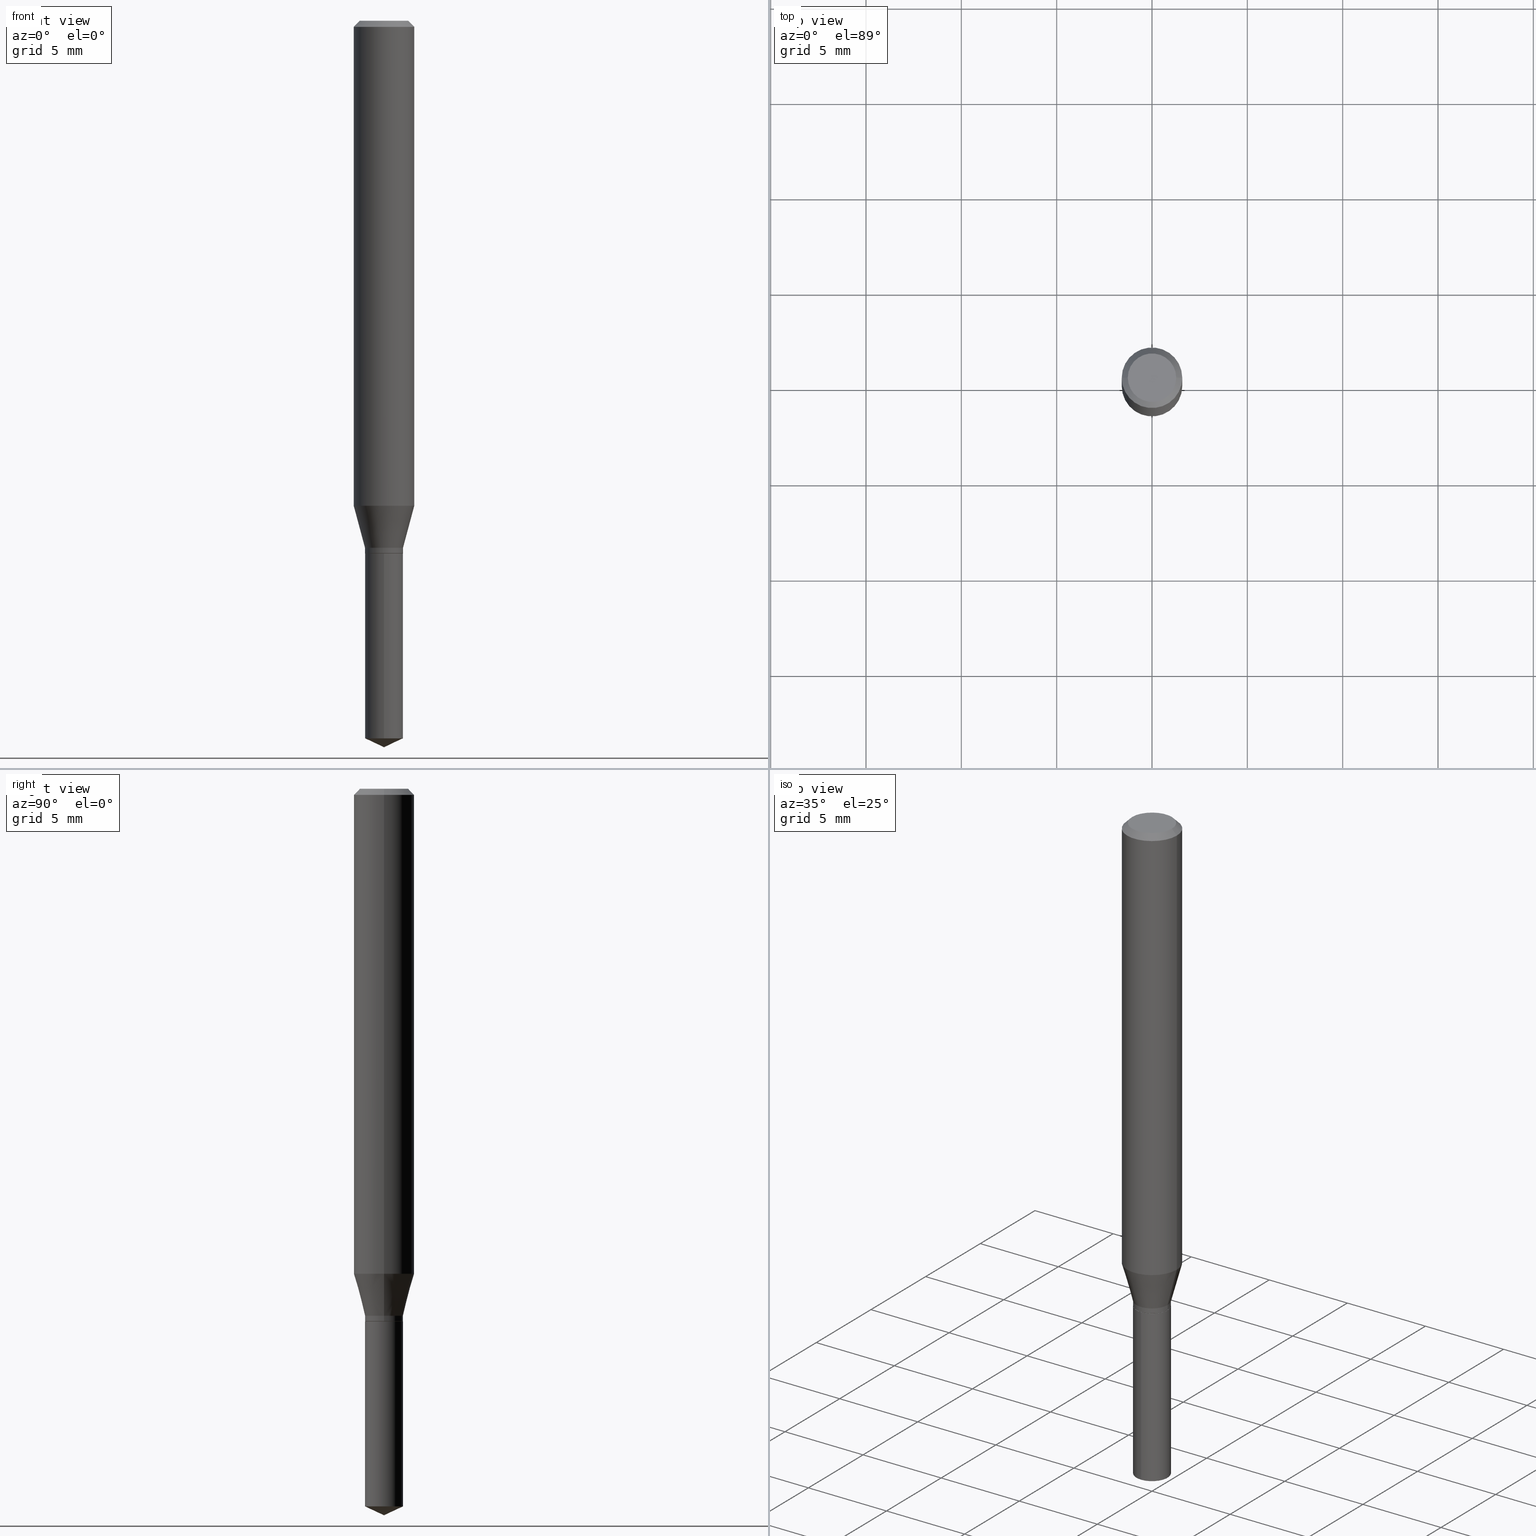
[diagram: canonical four-view strip — front | top / right | iso, engineering-drawing reading convention]
A machine part, canonical four-view strip (front | top / right | iso — engineering-drawing reading convention). The complete STEP part file that produces these views, byte-faithful:
ISO-10303-21;
HEADER;
FILE_DESCRIPTION (( 'STEP AP203' ),
    '1' );
FILE_NAME ('07188.STEP',
    '2024-04-23T19:56:03',
    ( '' ),
    ( '' ),
    'SwSTEP 2.0',
    'SolidWorks 2023',
    '' );
FILE_SCHEMA (( 'CONFIG_CONTROL_DESIGN' ));
ENDSEC;

DATA;
#1 = PERSON_AND_ORGANIZATION ( #194, #307 ) ;
#2 = CARTESIAN_POINT ( 'NONE',  ( 2.690015686803650369E-29, -3.840629472727460101E-15, -1.100000000000000089 ) ) ;
#3 = APPROVAL_DATE_TIME ( #106, #258 ) ;
#4 = DIRECTION ( 'NONE',  ( -2.445399690415121530E-29, 3.491580316559632610E-15, 1.000000000000000000 ) ) ;
#5 = CALENDAR_DATE ( 2024, 23, 4 ) ;
#6 = CARTESIAN_POINT ( 'NONE',  ( 2.448965383273235722E-29, -3.496473524236002365E-15, -1.001429818724023590 ) ) ;
#7 = DIRECTION ( 'NONE',  ( -6.982962677686264344E-15, -1.000000000000000000, 3.480061138425812861E-15 ) ) ;
#8 = APPROVAL ( #409, 'UNSPECIFIED' ) ;
#9 = DIRECTION ( 'NONE',  ( -2.445468806185136597E-29, 3.491481338843145583E-15, 1.000000000000000000 ) ) ;
#10 = DIRECTION ( 'NONE',  ( -0.7071067811865453523, 2.468850131082234184E-15, -0.7071067811865496822 ) ) ;
#11 = CIRCLE ( 'NONE', #38, 0.04999999999999999584 ) ;
#12 = LINE ( 'NONE', #123, #82 ) ;
#13 = AXIS2_PLACEMENT_3D ( 'NONE', #6, #152, #313 ) ;
#14 = DIRECTION ( 'NONE',  ( 1.000000000000000000, -6.982962677686264344E-15, 0.000000000000000000 ) ) ;
#15 = CARTESIAN_POINT ( 'NONE',  ( -0.03925000000000000017, -3.540268838707735840E-15, -1.099499999999999922 ) ) ;
#16 = ORIENTED_EDGE ( 'NONE', *, *, #300, .T. ) ;
#17 = DATE_AND_TIME ( #265, #472 ) ;
#18 = VECTOR ( 'NONE', #129, 39.37007874015748143 ) ;
#19 = FACE_OUTER_BOUND ( 'NONE', #116, .T. ) ;
#20 = ORIENTED_EDGE ( 'NONE', *, *, #89, .T. ) ;
#21 = AXIS2_PLACEMENT_3D ( 'NONE', #113, #188, #7 ) ;
#22 = DATE_TIME_ROLE ( 'classification_date' ) ;
#23 = DIRECTION ( 'NONE',  ( -2.445468806185136597E-29, 3.491481338843145583E-15, 1.000000000000000000 ) ) ;
#24 = ORIENTED_EDGE ( 'NONE', *, *, #84, .T. ) ;
#25 = CYLINDRICAL_SURFACE ( 'NONE', #269, 0.03925000000000000017 ) ;
#26 = ORIENTED_EDGE ( 'NONE', *, *, #463, .T. ) ;
#27 = CARTESIAN_POINT ( 'NONE',  ( 0.03925000000000000017, -4.073511278028297355E-15, -1.088200000000000056 ) ) ;
#28 = AXIS2_PLACEMENT_3D ( 'NONE', #177, #210, #276 ) ;
#29 = EDGE_LOOP ( 'NONE', ( #488, #20, #437, #320 ) ) ;
#30 = DESIGN_CONTEXT ( 'detailed design', #489, 'design' ) ;
#31 = EDGE_CURVE ( 'NONE', #485, #404, #257, .T. ) ;
#32 = CARTESIAN_POINT ( 'NONE',  ( 3.893286209682126177E-47, -5.558580879666067980E-33, -1.592040838891559689E-18 ) ) ;
#33 = ORIENTED_EDGE ( 'NONE', *, *, #117, .T. ) ;
#34 = CARTESIAN_POINT ( 'NONE',  ( 2.690015686803650369E-29, -3.840629472727460101E-15, -1.100000000000000089 ) ) ;
#35 = EDGE_CURVE ( 'NONE', #406, #290, #165, .T. ) ;
#36 = DIRECTION ( 'NONE',  ( 6.439704144417042975E-15, 0.9063077870366539335, 0.4226182617406908926 ) ) ;
#37 = CIRCLE ( 'NONE', #382, 0.03925000000000000017 ) ;
#38 = AXIS2_PLACEMENT_3D ( 'NONE', #201, #240, #309 ) ;
#39 = FACE_OUTER_BOUND ( 'NONE', #29, .T. ) ;
#40 = CALENDAR_DATE ( 2024, 23, 4 ) ;
#41 = DIRECTION ( 'NONE',  ( 1.000000000000000000, -6.982962677686266711E-15, 0.000000000000000000 ) ) ;
#42 = CARTESIAN_POINT ( 'NONE',  ( 3.056836007731440539E-31, -4.364351673553960451E-17, -0.01250000000000008049 ) ) ;
#43 = CONICAL_SURFACE ( 'NONE', #164, 0.06250000000000000000, 0.7853981633974452814 ) ;
#44 = AXIS2_PLACEMENT_3D ( 'NONE', #78, #419, #336 ) ;
#45 = CYLINDRICAL_SURFACE ( 'NONE', #119, 0.06250000000000005551 ) ;
#46 = DIRECTION ( 'NONE',  ( -2.445468806185136597E-29, 3.491481338843145583E-15, 1.000000000000000000 ) ) ;
#47 = ADVANCED_FACE ( 'NONE', ( #293 ), #315, .T. ) ;
#48 = CARTESIAN_POINT ( 'NONE',  ( 0.03925000000000000017, -2.740812850991859704E-16, 1.913899384499904532E-30 ) ) ;
#49 = CC_DESIGN_APPROVAL ( #8, ( #451 ) ) ;
#50 = DIRECTION ( 'NONE',  ( -2.445468806185136597E-29, 3.491481338843145583E-15, 1.000000000000000000 ) ) ;
#51 = FACE_OUTER_BOUND ( 'NONE', #136, .T. ) ;
#52 = ORIENTED_EDGE ( 'NONE', *, *, #286, .F. ) ;
#53 = CYLINDRICAL_SURFACE ( 'NONE', #233, 0.03925000000000000017 ) ;
#54 = ORIENTED_EDGE ( 'NONE', *, *, #230, .F. ) ;
#55 = CIRCLE ( 'NONE', #118, 0.03925000000000000017 ) ;
#56 = AXIS2_PLACEMENT_3D ( 'NONE', #443, #100, #252 ) ;
#57 = FACE_OUTER_BOUND ( 'NONE', #359, .T. ) ;
#58 = VERTEX_POINT ( 'NONE', #221 ) ;
#59 = CONICAL_SURFACE ( 'NONE', #245, 84.42940631927528727, 1.134464013796320225 ) ;
#60 = PLANE ( 'NONE',  #314 ) ;
#61 = ORIENTED_EDGE ( 'NONE', *, *, #89, .F. ) ;
#62 = FACE_OUTER_BOUND ( 'NONE', #362, .T. ) ;
#63 = VERTEX_POINT ( 'NONE', #368 ) ;
#64 = CARTESIAN_POINT ( 'NONE',  ( -0.03925000000000000017, -3.540268838707735840E-15, -1.088200000000000056 ) ) ;
#65 = CONICAL_SURFACE ( 'NONE', #56, 0.03925000000000000017, 0.2617993877991499629 ) ;
#66 = ORIENTED_EDGE ( 'NONE', *, *, #300, .F. ) ;
#67 = VECTOR ( 'NONE', #373, 39.37007874015748143 ) ;
#68 = COORDINATED_UNIVERSAL_TIME_OFFSET ( 5, 0, .BEHIND. ) ;
#69 = ORIENTED_EDGE ( 'NONE', *, *, #192, .F. ) ;
#70 = EDGE_CURVE ( 'NONE', #182, #464, #378, .T. ) ;
#71 =( NAMED_UNIT ( * ) PLANE_ANGLE_UNIT ( ) SI_UNIT ( $, .RADIAN. ) );
#72 = DIRECTION ( 'NONE',  ( -6.982962677686266711E-15, -1.000000000000000000, 3.520397390770414427E-15 ) ) ;
#73 = ORIENTED_EDGE ( 'NONE', *, *, #417, .T. ) ;
#74 = AXIS2_PLACEMENT_3D ( 'NONE', #149, #455, #76 ) ;
#75 = AXIS2_PLACEMENT_3D ( 'NONE', #306, #46, #14 ) ;
#76 = DIRECTION ( 'NONE',  ( 1.000000000000000000, 0.000000000000000000, 0.000000000000000000 ) ) ;
#77 = VERTEX_POINT ( 'NONE', #260 ) ;
#78 = CARTESIAN_POINT ( 'NONE',  ( 2.690015686803650369E-29, -3.840629472727460101E-15, -1.100000000000000089 ) ) ;
#79 = ADVANCED_FACE ( 'NONE', ( #371 ), #468, .T. ) ;
#80 = CARTESIAN_POINT ( 'NONE',  ( 0.03925000000000000017, -4.112965017157224125E-15, -1.099499999999999922 ) ) ;
#81 = CONICAL_SURFACE ( 'NONE', #291, 0.03925000000000000017, 0.2617993877991499629 ) ;
#82 = VECTOR ( 'NONE', #120, 39.37007874015748854 ) ;
#83 = DIRECTION ( 'NONE',  ( -2.445468806185136597E-29, 3.491481338843145583E-15, 1.000000000000000000 ) ) ;
#84 = EDGE_CURVE ( 'NONE', #58, #206, #448, .T. ) ;
#85 = CARTESIAN_POINT ( 'NONE',  ( 2.661159154890666307E-29, -3.799429992929111828E-15, -1.088200000000000056 ) ) ;
#86 = CARTESIAN_POINT ( 'NONE',  ( 2.688792952400557567E-29, -3.838883732058038598E-15, -1.099499999999999922 ) ) ;
#87 = CARTESIAN_POINT ( 'NONE',  ( -0.03925000000000000017, -3.520541969143272060E-15, -1.088200000000000056 ) ) ;
#88 = DIRECTION ( 'NONE',  ( 1.000000000000000000, -6.982962677686265922E-15, 4.875957971899673662E-29 ) ) ;
#89 = EDGE_CURVE ( 'NONE', #490, #317, #105, .T. ) ;
#90 = DIRECTION ( 'NONE',  ( 1.000000000000000000, -6.982962677686266711E-15, 4.876176775795935232E-29 ) ) ;
#91 = EDGE_LOOP ( 'NONE', ( #52, #61 ) ) ;
#92 = VECTOR ( 'NONE', #428, 39.37007874015748143 ) ;
#93 = CC_DESIGN_SECURITY_CLASSIFICATION ( #324, ( #144 ) ) ;
#94 = DIRECTION ( 'NONE',  ( -6.982962677686264344E-15, -1.000000000000000000, 3.480061138425812861E-15 ) ) ;
#95 = ORIENTED_EDGE ( 'NONE', *, *, #286, .T. ) ;
#96 = ADVANCED_FACE ( 'NONE', ( #39 ), #439, .T. ) ;
#97 = CARTESIAN_POINT ( 'NONE',  ( 0.03925000000000000017, -4.073511278028297355E-15, -1.088200000000000056 ) ) ;
#98 = ORIENTED_EDGE ( 'NONE', *, *, #486, .F. ) ;
#99 = ADVANCED_FACE ( 'NONE', ( #148 ), #266, .F. ) ;
#100 = DIRECTION ( 'NONE',  ( -2.445468806185136597E-29, 3.491481338843145583E-15, 1.000000000000000000 ) ) ;
#101 = EDGE_LOOP ( 'NONE', ( #375, #224, #251, #434 ) ) ;
#102 = COORDINATED_UNIVERSAL_TIME_OFFSET ( 5, 0, .BEHIND. ) ;
#103 = ORIENTED_EDGE ( 'NONE', *, *, #463, .F. ) ;
#104 = EDGE_CURVE ( 'NONE', #206, #58, #418, .T. ) ;
#105 = CIRCLE ( 'NONE', #44, 0.03874999999999999972 ) ;
#106 = DATE_AND_TIME ( #5, #423 ) ;
#107 = CARTESIAN_POINT ( 'NONE',  ( -0.03925000000000000017, 2.788880237858393241E-16, -1.930682022925050524E-30 ) ) ;
#108 = CARTESIAN_POINT ( 'NONE',  ( 2.690015686803650369E-29, -3.840629472727460101E-15, -1.100000000000000089 ) ) ;
#109 = DIRECTION ( 'NONE',  ( -6.982962677686264344E-15, -1.000000000000000000, 6.960122276851625723E-15 ) ) ;
#110 = LOCAL_TIME ( 15, 56, 3.000000000000000000, #157 ) ;
#111 = COORDINATED_UNIVERSAL_TIME_OFFSET ( 5, 0, .BEHIND. ) ;
#112 = ADVANCED_FACE ( 'NONE', ( #414 ), #296, .T. ) ;
#113 = CARTESIAN_POINT ( 'NONE',  ( 2.690015686803650369E-29, -3.840629472727460101E-15, -1.100000000000000089 ) ) ;
#114 = DIRECTION ( 'NONE',  ( 1.000000000000000000, -6.982962677686267499E-15, 4.876176775795936353E-29 ) ) ;
#115 = LINE ( 'NONE', #469, #332 ) ;
#116 = EDGE_LOOP ( 'NONE', ( #176, #430 ) ) ;
#117 = EDGE_CURVE ( 'NONE', #404, #426, #247, .T. ) ;
#118 = AXIS2_PLACEMENT_3D ( 'NONE', #85, #268, #352 ) ;
#119 = AXIS2_PLACEMENT_3D ( 'NONE', #122, #9, #114 ) ;
#120 = DIRECTION ( 'NONE',  ( -0.7071067811865232589, 7.493145998870265808E-15, 0.7071067811865715536 ) ) ;
#121 = PRODUCT_RELATED_PRODUCT_CATEGORY ( 'detail', '', ( #350 ) ) ;
#122 = CARTESIAN_POINT ( 'NONE',  ( 0.000000000000000000, 0.000000000000000000, 0.000000000000000000 ) ) ;
#123 = CARTESIAN_POINT ( 'NONE',  ( -0.03874999999999999972, -3.565294162620420838E-15, -1.100000000000000089 ) ) ;
#124 = ORIENTED_EDGE ( 'NONE', *, *, #127, .T. ) ;
#125 = VECTOR ( 'NONE', #261, 39.37007874015748143 ) ;
#126 = CONICAL_SURFACE ( 'NONE', #351, 0.06250000000000000000, 0.7853981633974452814 ) ;
#127 = EDGE_CURVE ( 'NONE', #290, #406, #275, .T. ) ;
#128 = DIRECTION ( 'NONE',  ( -2.445468806185136597E-29, 3.491481338843145583E-15, 1.000000000000000000 ) ) ;
#129 = DIRECTION ( 'NONE',  ( -6.328713451373388311E-15, -0.9063077870366510469, 0.4226182617406972208 ) ) ;
#130 = EDGE_CURVE ( 'NONE', #392, #77, #215, .T. ) ;
#131 = ORIENTED_EDGE ( 'NONE', *, *, #435, .T. ) ;
#132 = DIRECTION ( 'NONE',  ( 1.000000000000000000, -6.982962677686264344E-15, 0.000000000000000000 ) ) ;
#133 = ORIENTED_EDGE ( 'NONE', *, *, #117, .F. ) ;
#134 = ADVANCED_FACE ( 'NONE', ( #200 ), #45, .T. ) ;
#135 = DIRECTION ( 'NONE',  ( -1.000000000000000000, 6.982962677686266711E-15, 0.000000000000000000 ) ) ;
#136 = EDGE_LOOP ( 'NONE', ( #402, #444, #178, #124 ) ) ;
#137 = VECTOR ( 'NONE', #36, 39.37007874015748854 ) ;
#138 = APPROVAL ( #195, 'UNSPECIFIED' ) ;
#139 = DIRECTION ( 'NONE',  ( 0.2588190451025212391, 1.565188264969622362E-15, 0.9659258262890679791 ) ) ;
#140 = ORIENTED_EDGE ( 'NONE', *, *, #277, .F. ) ;
#141 = PERSON_AND_ORGANIZATION ( #194, #307 ) ;
#142 = ORIENTED_EDGE ( 'NONE', *, *, #158, .T. ) ;
#143 = APPROVAL_ROLE ( '' ) ;
#144 = PRODUCT_DEFINITION_FORMATION_WITH_SPECIFIED_SOURCE ( 'ANY', '', #350, .NOT_KNOWN. ) ;
#145 = ORIENTED_EDGE ( 'NONE', *, *, #104, .T. ) ;
#146 = VECTOR ( 'NONE', #204, 39.37007874015748143 ) ;
#147 = CARTESIAN_POINT ( 'NONE',  ( 3.668099535622682715E-29, -5.237370474839449507E-15, -1.500000000000000222 ) ) ;
#148 = FACE_OUTER_BOUND ( 'NONE', #91, .T. ) ;
#149 = CARTESIAN_POINT ( 'NONE',  ( 0.000000000000000000, 0.000000000000000000, 0.000000000000000000 ) ) ;
#150 = CARTESIAN_POINT ( 'NONE',  ( 3.623418450306251076E-29, -5.173356686704819845E-15, -1.481697424417416808 ) ) ;
#151 = PERSON_AND_ORGANIZATION_ROLE ( 'creator' ) ;
#152 = DIRECTION ( 'NONE',  ( -2.445468806185136597E-29, 3.491481338843145583E-15, 1.000000000000000000 ) ) ;
#153 = APPROVAL_PERSON_ORGANIZATION ( #1, #258, #452 ) ;
#154 = AXIS2_PLACEMENT_3D ( 'NONE', #227, #299, #41 ) ;
#155 = ADVANCED_FACE ( 'NONE', ( #51 ), #126, .T. ) ;
#156 = DIRECTION ( 'NONE',  ( -2.445468806185136597E-29, 3.491481338843145583E-15, 1.000000000000000000 ) ) ;
#157 = COORDINATED_UNIVERSAL_TIME_OFFSET ( 5, 0, .BEHIND. ) ;
#158 = EDGE_CURVE ( 'NONE', #397, #406, #346, .T. ) ;
#159 = DIRECTION ( 'NONE',  ( 2.445468806185136597E-29, -3.491481338843145583E-15, -1.000000000000000000 ) ) ;
#160 = EDGE_LOOP ( 'NONE', ( #24, #145 ) ) ;
#161 = MANIFOLD_SOLID_BREP ( 'Body-Move/Copy2[1]', #372 ) ;
#162 = DIRECTION ( 'NONE',  ( 1.000000000000000000, -6.982962677686264344E-15, 0.000000000000000000 ) ) ;
#163 = AXIS2_PLACEMENT_3D ( 'NONE', #294, #184, #193 ) ;
#164 = AXIS2_PLACEMENT_3D ( 'NONE', #473, #243, #135 ) ;
#165 = CIRCLE ( 'NONE', #431, 0.06250000000000000000 ) ;
#166 = DIRECTION ( 'NONE',  ( -6.982962677686264344E-15, -1.000000000000000000, 6.960122276851625723E-15 ) ) ;
#167 = PLANE ( 'NONE',  #380 ) ;
#168 = LINE ( 'NONE', #462, #197 ) ;
#169 = VERTEX_POINT ( 'NONE', #80 ) ;
#170 = PERSON_AND_ORGANIZATION ( #194, #307 ) ;
#171 = VECTOR ( 'NONE', #232, 39.37007874015748854 ) ;
#172 = DIRECTION ( 'NONE',  ( -2.445468806185136597E-29, 3.491481338843145583E-15, 1.000000000000000000 ) ) ;
#173 = APPLICATION_CONTEXT ( 'configuration controlled 3d designs of mechanical parts and assemblies' ) ;
#174 = EDGE_LOOP ( 'NONE', ( #244, #142, #180, #69 ) ) ;
#175 = FACE_OUTER_BOUND ( 'NONE', #285, .T. ) ;
#176 = ORIENTED_EDGE ( 'NONE', *, *, #335, .T. ) ;
#177 = CARTESIAN_POINT ( 'NONE',  ( 0.000000000000000000, 0.000000000000000000, 0.000000000000000000 ) ) ;
#178 = ORIENTED_EDGE ( 'NONE', *, *, #192, .T. ) ;
#179 = CARTESIAN_POINT ( 'NONE',  ( 2.661159154890666307E-29, -3.799429992929111828E-15, -1.088200000000000056 ) ) ;
#180 = ORIENTED_EDGE ( 'NONE', *, *, #35, .T. ) ;
#181 = FACE_OUTER_BOUND ( 'NONE', #174, .T. ) ;
#182 = VERTEX_POINT ( 'NONE', #15 ) ;
#183 = PERSON_AND_ORGANIZATION ( #194, #307 ) ;
#184 = DIRECTION ( 'NONE',  ( -2.438088387897960049E-29, 3.491481338843145188E-15, 1.000000000000000000 ) ) ;
#185 = APPROVAL_DATE_TIME ( #328, #8 ) ;
#186 = CIRCLE ( 'NONE', #305, 0.03874999999999999972 ) ;
#187 = APPROVAL_PERSON_ORGANIZATION ( #170, #138, #474 ) ;
#188 = DIRECTION ( 'NONE',  ( -2.445399690415121530E-29, 3.491580316559632610E-15, 1.000000000000000000 ) ) ;
#189 = AXIS2_PLACEMENT_3D ( 'NONE', #150, #340, #109 ) ;
#190 = APPLICATION_PROTOCOL_DEFINITION ( 'international standard', 'config_control_design', 1994, #489 ) ;
#191 = ORIENTED_EDGE ( 'NONE', *, *, #209, .F. ) ;
#192 = EDGE_CURVE ( 'NONE', #63, #290, #424, .T. ) ;
#193 = DIRECTION ( 'NONE',  ( 1.000000000000000000, -6.982962677686265922E-15, 4.876176775795935793E-29 ) ) ;
#194 = PERSON ( 'UNSPECIFIED', 'UNSPECIFIED', 'UNSPECIFIED', ('UNSPECIFIED'), ('UNSPECIFIED'), ('UNSPECIFIED') ) ;
#195 = APPROVAL_STATUS ( 'not_yet_approved' ) ;
#196 = DIRECTION ( 'NONE',  ( 1.000000000000000000, -6.982962677686263555E-15, 0.000000000000000000 ) ) ;
#197 = VECTOR ( 'NONE', #345, 39.37007874015748143 ) ;
#198 = EDGE_CURVE ( 'NONE', #169, #182, #37, .T. ) ;
#199 = CARTESIAN_POINT ( 'NONE',  ( 3.056836007731440539E-31, -4.364351673553960451E-17, -0.01250000000000008049 ) ) ;
#200 = FACE_OUTER_BOUND ( 'NONE', #101, .T. ) ;
#201 = CARTESIAN_POINT ( 'NONE',  ( 3.893286209682126177E-47, -5.558580879666067980E-33, -1.592040838891559689E-18 ) ) ;
#202 = AXIS2_PLACEMENT_3D ( 'NONE', #338, #4, #456 ) ;
#203 = FACE_OUTER_BOUND ( 'NONE', #160, .T. ) ;
#204 = DIRECTION ( 'NONE',  ( -2.445468806185136877E-29, 3.491481338843145188E-15, 1.000000000000000000 ) ) ;
#205 = DIRECTION ( 'NONE',  ( -1.000000000000000000, 6.982962677686265922E-15, -4.876176775795935793E-29 ) ) ;
#206 = VERTEX_POINT ( 'NONE', #302 ) ;
#207 = CARTESIAN_POINT ( 'NONE',  ( 0.06250000000000000000, -4.800786840909312308E-16, -0.01250000000000008049 ) ) ;
#208 = ORIENTED_EDGE ( 'NONE', *, *, #70, .T. ) ;
#209 = EDGE_CURVE ( 'NONE', #464, #392, #429, .T. ) ;
#210 = DIRECTION ( 'NONE',  ( -2.445468806185136597E-29, 3.491481338843145583E-15, 1.000000000000000000 ) ) ;
#211 = ORIENTED_EDGE ( 'NONE', *, *, #253, .F. ) ;
#212 = CYLINDRICAL_SURFACE ( 'NONE', #28, 0.06250000000000005551 ) ;
#213 = EDGE_LOOP ( 'NONE', ( #95, #395, #288, #54 ) ) ;
#214 = LINE ( 'NONE', #480, #387 ) ;
#215 = CIRCLE ( 'NONE', #13, 0.06250000000000012490 ) ;
#216 = EDGE_LOOP ( 'NONE', ( #312, #73, #16, #103 ) ) ;
#217 = EDGE_CURVE ( 'NONE', #77, #406, #470, .T. ) ;
#218 = CARTESIAN_POINT ( 'NONE',  ( -2.740812850991590012E-16, -0.03925000000000383737, -1.099999999999999867 ) ) ;
#219 = ORIENTED_EDGE ( 'NONE', *, *, #222, .T. ) ;
#220 = EDGE_CURVE ( 'NONE', #364, #464, #55, .T. ) ;
#221 = CARTESIAN_POINT ( 'NONE',  ( -2.740812850991590012E-16, -0.03925000000000383737, -1.099999999999999867 ) ) ;
#222 = EDGE_CURVE ( 'NONE', #392, #290, #168, .T. ) ;
#223 = AXIS2_PLACEMENT_3D ( 'NONE', #281, #436, #94 ) ;
#224 = ORIENTED_EDGE ( 'NONE', *, *, #130, .T. ) ;
#225 = AXIS2_PLACEMENT_3D ( 'NONE', #2, #229, #196 ) ;
#226 = COORDINATED_UNIVERSAL_TIME_OFFSET ( 5, 0, .BEHIND. ) ;
#227 = CARTESIAN_POINT ( 'NONE',  ( 3.056836007731440539E-31, -4.364351673553960451E-17, -0.01250000000000008049 ) ) ;
#228 = LINE ( 'NONE', #218, #125 ) ;
#229 = DIRECTION ( 'NONE',  ( -2.445468806185136597E-29, 3.491481338843145583E-15, 1.000000000000000000 ) ) ;
#230 = EDGE_CURVE ( 'NONE', #317, #169, #115, .T. ) ;
#231 = APPROVAL_DATE_TIME ( #354, #138 ) ;
#232 = DIRECTION ( 'NONE',  ( -0.2588190451025212391, 5.211531920934549464E-15, 0.9659258262890679791 ) ) ;
#233 = AXIS2_PLACEMENT_3D ( 'NONE', #355, #172, #90 ) ;
#234 = VECTOR ( 'NONE', #383, 39.37007874015748143 ) ;
#235 = DIRECTION ( 'NONE',  ( -1.000000000000000000, 6.982962677686266711E-15, 0.000000000000000000 ) ) ;
#236 = ORIENTED_EDGE ( 'NONE', *, *, #341, .F. ) ;
#237 = CARTESIAN_POINT ( 'NONE',  ( -0.06250000000000000000, -1.325969310635706967E-15, -0.01250000000000008049 ) ) ;
#238 = CARTESIAN_POINT ( 'NONE',  ( -9.260740279983036507E-28, 1.322265303911854087E-13, 37.87007874015748143 ) ) ;
#239 = CC_DESIGN_APPROVAL ( #138, ( #324 ) ) ;
#240 = DIRECTION ( 'NONE',  ( -2.445468806185136597E-29, 3.491481338843145583E-15, 1.000000000000000000 ) ) ;
#241 = CARTESIAN_POINT ( 'NONE',  ( 2.688792952400557567E-29, -3.838883732058038598E-15, -1.099499999999999922 ) ) ;
#242 = EDGE_CURVE ( 'NONE', #490, #182, #12, .T. ) ;
#243 = DIRECTION ( 'NONE',  ( 2.445468806185136597E-29, -3.491481338843145583E-15, -1.000000000000000000 ) ) ;
#244 = ORIENTED_EDGE ( 'NONE', *, *, #308, .F. ) ;
#245 = AXIS2_PLACEMENT_3D ( 'NONE', #238, #467, #427 ) ;
#246 =( GEOMETRIC_REPRESENTATION_CONTEXT ( 3 ) GLOBAL_UNCERTAINTY_ASSIGNED_CONTEXT ( ( #398 ) ) GLOBAL_UNIT_ASSIGNED_CONTEXT ( ( #487, #71, #334 ) ) REPRESENTATION_CONTEXT ( 'NONE', 'WORKASPACE' ) );
#247 = CIRCLE ( 'NONE', #189, 0.03925000000000000017 ) ;
#248 = DIRECTION ( 'NONE',  ( -2.445399690415121810E-29, 3.491580316559632610E-15, 1.000000000000000000 ) ) ;
#249 = ORIENTED_EDGE ( 'NONE', *, *, #31, .T. ) ;
#250 = CYLINDRICAL_SURFACE ( 'NONE', #223, 0.03925000000000000017 ) ;
#251 = ORIENTED_EDGE ( 'NONE', *, *, #217, .T. ) ;
#252 = DIRECTION ( 'NONE',  ( 1.000000000000000000, -6.982962677686264344E-15, 0.000000000000000000 ) ) ;
#253 = EDGE_CURVE ( 'NONE', #77, #392, #483, .T. ) ;
#254 = ORIENTED_EDGE ( 'NONE', *, *, #217, .F. ) ;
#255 = PERSON_AND_ORGANIZATION ( #194, #307 ) ;
#256 = AXIS2_PLACEMENT_3D ( 'NONE', #420, #264, #72 ) ;
#257 = LINE ( 'NONE', #413, #137 ) ;
#258 = APPROVAL ( #339, 'UNSPECIFIED' ) ;
#259 = PERSON_AND_ORGANIZATION_ROLE ( 'design_supplier' ) ;
#260 = CARTESIAN_POINT ( 'NONE',  ( 0.06250000000000012490, -3.932908691591394824E-15, -1.001429818724023590 ) ) ;
#261 = DIRECTION ( 'NONE',  ( -2.445399690415121810E-29, 3.491580316559632610E-15, 1.000000000000000000 ) ) ;
#262 = DIRECTION ( 'NONE',  ( -2.445399690415121530E-29, 3.491580316559632610E-15, 1.000000000000000000 ) ) ;
#263 = CALENDAR_DATE ( 2024, 23, 4 ) ;
#264 = DIRECTION ( 'NONE',  ( -2.445399690415121530E-29, 3.491580316559632610E-15, 1.000000000000000000 ) ) ;
#265 = CALENDAR_DATE ( 2024, 23, 4 ) ;
#266 = PLANE ( 'NONE',  #163 ) ;
#267 = CARTESIAN_POINT ( 'NONE',  ( 0.06250000000000000000, -4.724246415962602840E-16, -0.01250000000000008049 ) ) ;
#268 = DIRECTION ( 'NONE',  ( -2.445468806185136597E-29, 3.491481338843145583E-15, 1.000000000000000000 ) ) ;
#269 = AXIS2_PLACEMENT_3D ( 'NONE', #396, #23, #321 ) ;
#270 = EDGE_LOOP ( 'NONE', ( #236, #33, #329, #461 ) ) ;
#271 = CARTESIAN_POINT ( 'NONE',  ( 3.623418450306251076E-29, -5.173356686704819845E-15, -1.481697424417416808 ) ) ;
#272 = DIRECTION ( 'NONE',  ( 1.000000000000000000, -6.982962677686263555E-15, 0.000000000000000000 ) ) ;
#273 = DIRECTION ( 'NONE',  ( 0.7071067811865232589, -2.468850131082003836E-15, 0.7071067811865715536 ) ) ;
#274 = ORIENTED_EDGE ( 'NONE', *, *, #330, .F. ) ;
#275 = CIRCLE ( 'NONE', #154, 0.06250000000000000000 ) ;
#276 = DIRECTION ( 'NONE',  ( 1.000000000000000000, -6.982962677686267499E-15, 4.876176775795936353E-29 ) ) ;
#277 = EDGE_CURVE ( 'NONE', #426, #404, #357, .T. ) ;
#278 = DIRECTION ( 'NONE',  ( 2.445399690415121250E-29, -3.491580316559632610E-15, -1.000000000000000000 ) ) ;
#279 = ORIENTED_EDGE ( 'NONE', *, *, #220, .F. ) ;
#280 = ADVANCED_FACE ( 'NONE', ( #391 ), #59, .T. ) ;
#281 = CARTESIAN_POINT ( 'NONE',  ( 2.690015686803650369E-29, -3.840629472727460101E-15, -1.100000000000000089 ) ) ;
#282 = ORIENTED_EDGE ( 'NONE', *, *, #31, .F. ) ;
#283 = AXIS2_PLACEMENT_3D ( 'NONE', #360, #287, #132 ) ;
#284 = FACE_OUTER_BOUND ( 'NONE', #453, .T. ) ;
#285 = EDGE_LOOP ( 'NONE', ( #191, #26, #442, #356 ) ) ;
#286 = EDGE_CURVE ( 'NONE', #317, #490, #186, .T. ) ;
#287 = DIRECTION ( 'NONE',  ( -2.445468806185136597E-29, 3.491481338843145583E-15, 1.000000000000000000 ) ) ;
#288 = ORIENTED_EDGE ( 'NONE', *, *, #198, .F. ) ;
#289 = PERSON_AND_ORGANIZATION_ROLE ( 'design_owner' ) ;
#290 = VERTEX_POINT ( 'NONE', #237 ) ;
#291 = AXIS2_PLACEMENT_3D ( 'NONE', #179, #325, #319 ) ;
#292 = LENGTH_MEASURE_WITH_UNIT ( LENGTH_MEASURE( 0.02539999999999999897 ), #416 );
#293 = FACE_OUTER_BOUND ( 'NONE', #326, .T. ) ;
#294 = CARTESIAN_POINT ( 'NONE',  ( 2.690015686803650369E-29, -3.840629472727460101E-15, -1.100000000000000089 ) ) ;
#295 = SECURITY_CLASSIFICATION_LEVEL ( 'unclassified' ) ;
#296 = CYLINDRICAL_SURFACE ( 'NONE', #202, 0.03925000000000000017 ) ;
#297 = PERSON_AND_ORGANIZATION ( #194, #307 ) ;
#298 = CIRCLE ( 'NONE', #283, 0.03925000000000000017 ) ;
#299 = DIRECTION ( 'NONE',  ( -2.445468806185136597E-29, 3.491481338843145583E-15, 1.000000000000000000 ) ) ;
#300 = EDGE_CURVE ( 'NONE', #169, #364, #386, .T. ) ;
#301 = ORIENTED_EDGE ( 'NONE', *, *, #84, .F. ) ;
#302 = CARTESIAN_POINT ( 'NONE',  ( 2.788880237858755131E-16, 0.03924999999999615602, -1.100000000000000089 ) ) ;
#303 = ADVANCED_BREP_SHAPE_REPRESENTATION ( '07188', ( #161, #318, #74 ), #246 ) ;
#304 = ORIENTED_EDGE ( 'NONE', *, *, #220, .T. ) ;
#305 = AXIS2_PLACEMENT_3D ( 'NONE', #353, #50, #272 ) ;
#306 = CARTESIAN_POINT ( 'NONE',  ( 2.448965383273235722E-29, -3.496473524236002365E-15, -1.001429818724023590 ) ) ;
#307 = ORGANIZATION ( 'UNSPECIFIED', 'UNSPECIFIED', '' ) ;
#308 = EDGE_CURVE ( 'NONE', #397, #63, #11, .T. ) ;
#309 = DIRECTION ( 'NONE',  ( 1.000000000000000000, -6.982962677686265922E-15, 4.875957971899673662E-29 ) ) ;
#310 = ORIENTED_EDGE ( 'NONE', *, *, #35, .F. ) ;
#311 = CARTESIAN_POINT ( 'NONE',  ( 2.690015686803650369E-29, -3.840629472727460101E-15, -1.100000000000000089 ) ) ;
#312 = ORIENTED_EDGE ( 'NONE', *, *, #70, .F. ) ;
#313 = DIRECTION ( 'NONE',  ( 1.000000000000000000, -6.982962677686264344E-15, 0.000000000000000000 ) ) ;
#314 = AXIS2_PLACEMENT_3D ( 'NONE', #363, #365, #205 ) ;
#315 = CONICAL_SURFACE ( 'NONE', #256, 84.42940631927528727, 1.134464013796320225 ) ;
#316 = CARTESIAN_POINT ( 'NONE',  ( -2.740812850991497321E-16, -0.03925000000000516270, -1.481697424417416808 ) ) ;
#317 = VERTEX_POINT ( 'NONE', #349 ) ;
#318 = MANIFOLD_SOLID_BREP ( 'Body-Move/Copy2[2]', #465 ) ;
#319 = DIRECTION ( 'NONE',  ( 1.000000000000000000, -6.982962677686264344E-15, 0.000000000000000000 ) ) ;
#320 = ORIENTED_EDGE ( 'NONE', *, *, #417, .F. ) ;
#321 = DIRECTION ( 'NONE',  ( 1.000000000000000000, -6.982962677686266711E-15, 4.876176775795935232E-29 ) ) ;
#322 = ORIENTED_EDGE ( 'NONE', *, *, #209, .T. ) ;
#323 = ADVANCED_FACE ( 'NONE', ( #203 ), #167, .F. ) ;
#324 = SECURITY_CLASSIFICATION ( '', '', #295 ) ;
#325 = DIRECTION ( 'NONE',  ( -2.445468806185136597E-29, 3.491481338843145583E-15, 1.000000000000000000 ) ) ;
#326 = EDGE_LOOP ( 'NONE', ( #366, #249, #140 ) ) ;
#327 = CC_DESIGN_PERSON_AND_ORGANIZATION_ASSIGNMENT ( #141, #445, ( #451 ) ) ;
#328 = DATE_AND_TIME ( #263, #415 ) ;
#329 = ORIENTED_EDGE ( 'NONE', *, *, #486, .T. ) ;
#330 = EDGE_CURVE ( 'NONE', #364, #77, #403, .T. ) ;
#331 = EDGE_LOOP ( 'NONE', ( #476, #384, #301, #98 ) ) ;
#332 = VECTOR ( 'NONE', #273, 39.37007874015748854 ) ;
#333 = LOCAL_TIME ( 15, 56, 3.000000000000000000, #226 ) ;
#334 =( NAMED_UNIT ( * ) SI_UNIT ( $, .STERADIAN. ) SOLID_ANGLE_UNIT ( ) );
#335 = EDGE_CURVE ( 'NONE', #63, #397, #407, .T. ) ;
#336 = DIRECTION ( 'NONE',  ( 1.000000000000000000, -6.982962677686263555E-15, 0.000000000000000000 ) ) ;
#337 = DATE_AND_TIME ( #40, #333 ) ;
#338 = CARTESIAN_POINT ( 'NONE',  ( 2.690015686803650369E-29, -3.840629472727460101E-15, -1.100000000000000089 ) ) ;
#339 = APPROVAL_STATUS ( 'not_yet_approved' ) ;
#340 = DIRECTION ( 'NONE',  ( -2.445399690415121530E-29, 3.491580316559632610E-15, 1.000000000000000000 ) ) ;
#341 = EDGE_CURVE ( 'NONE', #404, #206, #214, .T. ) ;
#342 = SHAPE_DEFINITION_REPRESENTATION ( #389, #303 ) ;
#343 = DIRECTION ( 'NONE',  ( 1.000000000000000000, -6.982962677686263555E-15, 0.000000000000000000 ) ) ;
#344 = AXIS2_PLACEMENT_3D ( 'NONE', #34, #156, #343 ) ;
#345 = DIRECTION ( 'NONE',  ( -2.445468806185136877E-29, 3.491481338843145188E-15, 1.000000000000000000 ) ) ;
#346 = LINE ( 'NONE', #267, #234 ) ;
#347 = DIMENSIONAL_EXPONENTS ( 1.000000000000000000, 0.000000000000000000, 0.000000000000000000, 0.000000000000000000, 0.000000000000000000, 0.000000000000000000, 0.000000000000000000 ) ;
#348 = VECTOR ( 'NONE', #139, 39.37007874015748854 ) ;
#349 = CARTESIAN_POINT ( 'NONE',  ( 0.03874999999999999972, -4.111219276487802621E-15, -1.100000000000000089 ) ) ;
#350 = PRODUCT ( '07188', '07188', '', ( #374 ) ) ;
#351 = AXIS2_PLACEMENT_3D ( 'NONE', #199, #159, #235 ) ;
#352 = DIRECTION ( 'NONE',  ( 1.000000000000000000, -6.982962677686264344E-15, 0.000000000000000000 ) ) ;
#353 = CARTESIAN_POINT ( 'NONE',  ( 2.690015686803650369E-29, -3.840629472727460101E-15, -1.100000000000000089 ) ) ;
#354 = DATE_AND_TIME ( #390, #110 ) ;
#355 = CARTESIAN_POINT ( 'NONE',  ( 0.000000000000000000, 0.000000000000000000, 0.000000000000000000 ) ) ;
#356 = ORIENTED_EDGE ( 'NONE', *, *, #130, .F. ) ;
#357 = CIRCLE ( 'NONE', #425, 0.03925000000000000017 ) ;
#358 = DIRECTION ( 'NONE',  ( 1.000000000000000000, -6.982962677686264344E-15, 0.000000000000000000 ) ) ;
#359 = EDGE_LOOP ( 'NONE', ( #478, #208, #279, #66 ) ) ;
#360 = CARTESIAN_POINT ( 'NONE',  ( 2.661159154890666307E-29, -3.799429992929111828E-15, -1.088200000000000056 ) ) ;
#361 = ADVANCED_FACE ( 'NONE', ( #181 ), #43, .T. ) ;
#362 = EDGE_LOOP ( 'NONE', ( #304, #322, #211, #274 ) ) ;
#363 = CARTESIAN_POINT ( 'NONE',  ( 1.946643104841063088E-47, -2.779290439833033990E-33, -7.960204194457798443E-19 ) ) ;
#364 = VERTEX_POINT ( 'NONE', #97 ) ;
#365 = DIRECTION ( 'NONE',  ( 2.438088387897960049E-29, -3.491481338843145188E-15, -1.000000000000000000 ) ) ;
#366 = ORIENTED_EDGE ( 'NONE', *, *, #435, .F. ) ;
#367 = DATE_TIME_ROLE ( 'creation_date' ) ;
#368 = CARTESIAN_POINT ( 'NONE',  ( -0.04999999999999999584, 3.709698922520826725E-16, -1.592040838894077649E-18 ) ) ;
#369 = CC_DESIGN_DATE_AND_TIME_ASSIGNMENT ( #337, #367, ( #451 ) ) ;
#370 = PERSON_AND_ORGANIZATION ( #194, #307 ) ;
#371 = FACE_OUTER_BOUND ( 'NONE', #213, .T. ) ;
#372 = CLOSED_SHELL ( 'NONE', ( #471, #47, #280, #112, #323 ) ) ;
#373 = DIRECTION ( 'NONE',  ( -2.445468806185136877E-29, 3.491481338843145188E-15, 1.000000000000000000 ) ) ;
#374 = MECHANICAL_CONTEXT ( 'NONE', #173, 'mechanical' ) ;
#375 = ORIENTED_EDGE ( 'NONE', *, *, #222, .F. ) ;
#376 = ADVANCED_FACE ( 'NONE', ( #19 ), #60, .F. ) ;
#377 = CARTESIAN_POINT ( 'NONE',  ( -0.03874999999999999972, -3.562644935446310425E-15, -1.100000000000000089 ) ) ;
#378 = LINE ( 'NONE', #107, #67 ) ;
#379 = CC_DESIGN_PERSON_AND_ORGANIZATION_ASSIGNMENT ( #183, #151, ( #144 ) ) ;
#380 = AXIS2_PLACEMENT_3D ( 'NONE', #311, #278, #477 ) ;
#381 = CARTESIAN_POINT ( 'NONE',  ( 0.06250000000000005551, -4.364351673553921131E-16, 3.047610484872463023E-30 ) ) ;
#382 = AXIS2_PLACEMENT_3D ( 'NONE', #86, #83, #162 ) ;
#383 = DIRECTION ( 'NONE',  ( 0.7071067811865453523, -7.319954787623248157E-15, -0.7071067811865496822 ) ) ;
#384 = ORIENTED_EDGE ( 'NONE', *, *, #341, .T. ) ;
#385 = CC_DESIGN_DATE_AND_TIME_ASSIGNMENT ( #17, #22, ( #324 ) ) ;
#386 = LINE ( 'NONE', #48, #92 ) ;
#387 = VECTOR ( 'NONE', #248, 39.37007874015748143 ) ;
#388 = DIRECTION ( 'NONE',  ( -2.445399690415121530E-29, 3.491580316559632610E-15, 1.000000000000000000 ) ) ;
#389 = PRODUCT_DEFINITION_SHAPE ( 'NONE', 'NONE',  #451 ) ;
#390 = CALENDAR_DATE ( 2024, 23, 4 ) ;
#391 = FACE_OUTER_BOUND ( 'NONE', #446, .T. ) ;
#392 = VERTEX_POINT ( 'NONE', #401 ) ;
#393 = ADVANCED_FACE ( 'NONE', ( #284 ), #212, .T. ) ;
#394 = DIRECTION ( 'NONE',  ( -2.445468806185136597E-29, 3.491481338843145583E-15, 1.000000000000000000 ) ) ;
#395 = ORIENTED_EDGE ( 'NONE', *, *, #242, .T. ) ;
#396 = CARTESIAN_POINT ( 'NONE',  ( 0.000000000000000000, 0.000000000000000000, 0.000000000000000000 ) ) ;
#397 = VERTEX_POINT ( 'NONE', #484 ) ;
#398 = UNCERTAINTY_MEASURE_WITH_UNIT (LENGTH_MEASURE( 1.000000000000000082E-05 ), #487, 'distance_accuracy_value', 'NONE');
#399 = CC_DESIGN_APPROVAL ( #258, ( #144 ) ) ;
#400 = AXIS2_PLACEMENT_3D ( 'NONE', #108, #262, #459 ) ;
#401 = CARTESIAN_POINT ( 'NONE',  ( -0.06250000000000012490, -3.052384314385938566E-15, -1.001429818724023590 ) ) ;
#402 = ORIENTED_EDGE ( 'NONE', *, *, #158, .F. ) ;
#403 = LINE ( 'NONE', #27, #348 ) ;
#404 = VERTEX_POINT ( 'NONE', #432 ) ;
#405 = FACE_OUTER_BOUND ( 'NONE', #216, .T. ) ;
#406 = VERTEX_POINT ( 'NONE', #207 ) ;
#407 = CIRCLE ( 'NONE', #447, 0.04999999999999999584 ) ;
#408 = VECTOR ( 'NONE', #10, 39.37007874015748143 ) ;
#409 = APPROVAL_STATUS ( 'not_yet_approved' ) ;
#410 = DIRECTION ( 'NONE',  ( -2.445468806185136597E-29, 3.491481338843145583E-15, 1.000000000000000000 ) ) ;
#411 = CC_DESIGN_PERSON_AND_ORGANIZATION_ASSIGNMENT ( #297, #458, ( #324 ) ) ;
#412 = APPLICATION_PROTOCOL_DEFINITION ( 'international standard', 'config_control_design', 1994, #173 ) ;
#413 = CARTESIAN_POINT ( 'NONE',  ( 3.668252923656895710E-29, -5.237152723863177100E-15, -1.500000000000000222 ) ) ;
#414 = FACE_OUTER_BOUND ( 'NONE', #270, .T. ) ;
#415 = LOCAL_TIME ( 15, 56, 3.000000000000000000, #68 ) ;
#416 =( LENGTH_UNIT ( ) NAMED_UNIT ( * ) SI_UNIT ( $, .METRE. ) );
#417 = EDGE_CURVE ( 'NONE', #182, #169, #438, .T. ) ;
#418 = CIRCLE ( 'NONE', #400, 0.03925000000000000017 ) ;
#419 = DIRECTION ( 'NONE',  ( -2.445468806185136597E-29, 3.491481338843145583E-15, 1.000000000000000000 ) ) ;
#420 = CARTESIAN_POINT ( 'NONE',  ( -9.260740279983036507E-28, 1.322265303911854087E-13, 37.87007874015748143 ) ) ;
#421 = CARTESIAN_POINT ( 'NONE',  ( -0.06250000000000000000, 3.927916506198521080E-16, -0.01250000000000008049 ) ) ;
#422 = ADVANCED_FACE ( 'NONE', ( #405 ), #53, .T. ) ;
#423 = LOCAL_TIME ( 15, 56, 3.000000000000000000, #102 ) ;
#424 = LINE ( 'NONE', #421, #408 ) ;
#425 = AXIS2_PLACEMENT_3D ( 'NONE', #271, #388, #166 ) ;
#426 = VERTEX_POINT ( 'NONE', #316 ) ;
#427 = DIRECTION ( 'NONE',  ( -6.982962677686266711E-15, -1.000000000000000000, 3.520397390770414427E-15 ) ) ;
#428 = DIRECTION ( 'NONE',  ( -2.445468806185136877E-29, 3.491481338843145188E-15, 1.000000000000000000 ) ) ;
#429 = LINE ( 'NONE', #87, #171 ) ;
#430 = ORIENTED_EDGE ( 'NONE', *, *, #308, .T. ) ;
#431 = AXIS2_PLACEMENT_3D ( 'NONE', #42, #410, #450 ) ;
#432 = CARTESIAN_POINT ( 'NONE',  ( 2.788880237858754638E-16, 0.03924999999999482375, -1.481697424417416808 ) ) ;
#433 = LINE ( 'NONE', #475, #18 ) ;
#434 = ORIENTED_EDGE ( 'NONE', *, *, #127, .F. ) ;
#435 = EDGE_CURVE ( 'NONE', #485, #426, #433, .T. ) ;
#436 = DIRECTION ( 'NONE',  ( -2.445399690415121530E-29, 3.491580316559632610E-15, 1.000000000000000000 ) ) ;
#437 = ORIENTED_EDGE ( 'NONE', *, *, #230, .T. ) ;
#438 = CIRCLE ( 'NONE', #481, 0.03925000000000000017 ) ;
#439 = CONICAL_SURFACE ( 'NONE', #225, 0.03874999999999999972, 0.7853981633974141952 ) ;
#440 = CC_DESIGN_PERSON_AND_ORGANIZATION_ASSIGNMENT ( #255, #289, ( #350 ) ) ;
#441 = FACE_OUTER_BOUND ( 'NONE', #331, .T. ) ;
#442 = ORIENTED_EDGE ( 'NONE', *, *, #330, .T. ) ;
#443 = CARTESIAN_POINT ( 'NONE',  ( 2.661159154890666307E-29, -3.799429992929111828E-15, -1.088200000000000056 ) ) ;
#444 = ORIENTED_EDGE ( 'NONE', *, *, #335, .F. ) ;
#445 = PERSON_AND_ORGANIZATION_ROLE ( 'creator' ) ;
#446 = EDGE_LOOP ( 'NONE', ( #282, #131, #133 ) ) ;
#447 = AXIS2_PLACEMENT_3D ( 'NONE', #32, #128, #88 ) ;
#448 = CIRCLE ( 'NONE', #21, 0.03925000000000000017 ) ;
#449 = PERSON_AND_ORGANIZATION ( #194, #307 ) ;
#450 = DIRECTION ( 'NONE',  ( 1.000000000000000000, -6.982962677686266711E-15, 0.000000000000000000 ) ) ;
#451 = PRODUCT_DEFINITION ( 'UNKNOWN', '', #144, #30 ) ;
#452 = APPROVAL_ROLE ( '' ) ;
#453 = EDGE_LOOP ( 'NONE', ( #482, #219, #310, #254 ) ) ;
#454 = ADVANCED_FACE ( 'NONE', ( #57 ), #25, .T. ) ;
#455 = DIRECTION ( 'NONE',  ( 0.000000000000000000, 0.000000000000000000, 1.000000000000000000 ) ) ;
#456 = DIRECTION ( 'NONE',  ( -6.982962677686264344E-15, -1.000000000000000000, 3.480061138425812861E-15 ) ) ;
#457 = CC_DESIGN_PERSON_AND_ORGANIZATION_ASSIGNMENT ( #449, #259, ( #144 ) ) ;
#458 = PERSON_AND_ORGANIZATION_ROLE ( 'classification_officer' ) ;
#459 = DIRECTION ( 'NONE',  ( -6.982962677686264344E-15, -1.000000000000000000, 3.480061138425812861E-15 ) ) ;
#460 = ADVANCED_FACE ( 'NONE', ( #175 ), #81, .T. ) ;
#461 = ORIENTED_EDGE ( 'NONE', *, *, #104, .F. ) ;
#462 = CARTESIAN_POINT ( 'NONE',  ( -0.06250000000000005551, 4.440892098500630106E-16, -3.074334431409318916E-30 ) ) ;
#463 = EDGE_CURVE ( 'NONE', #464, #364, #298, .T. ) ;
#464 = VERTEX_POINT ( 'NONE', #64 ) ;
#465 = CLOSED_SHELL ( 'NONE', ( #79, #361, #393, #479, #454, #422, #460, #134, #155, #376, #99, #96 ) ) ;
#466 = APPROVAL_PERSON_ORGANIZATION ( #370, #8, #143 ) ;
#467 = DIRECTION ( 'NONE',  ( -2.445399690415121530E-29, 3.491580316559632610E-15, 1.000000000000000000 ) ) ;
#468 = CONICAL_SURFACE ( 'NONE', #344, 0.03874999999999999972, 0.7853981633974141952 ) ;
#469 = CARTESIAN_POINT ( 'NONE',  ( 0.03874999999999999972, -4.111219276487802621E-15, -1.100000000000000089 ) ) ;
#470 = LINE ( 'NONE', #381, #146 ) ;
#471 = ADVANCED_FACE ( 'NONE', ( #441 ), #250, .T. ) ;
#472 = LOCAL_TIME ( 15, 56, 3.000000000000000000, #111 ) ;
#473 = CARTESIAN_POINT ( 'NONE',  ( 3.056836007731440539E-31, -4.364351673553960451E-17, -0.01250000000000008049 ) ) ;
#474 = APPROVAL_ROLE ( '' ) ;
#475 = CARTESIAN_POINT ( 'NONE',  ( 3.668099535622682155E-29, -5.237370474839448718E-15, -1.500000000000000222 ) ) ;
#476 = ORIENTED_EDGE ( 'NONE', *, *, #277, .T. ) ;
#477 = DIRECTION ( 'NONE',  ( 6.982962677686265922E-15, 1.000000000000000000, -3.491580316559632610E-15 ) ) ;
#478 = ORIENTED_EDGE ( 'NONE', *, *, #198, .T. ) ;
#479 = ADVANCED_FACE ( 'NONE', ( #62 ), #65, .T. ) ;
#480 = CARTESIAN_POINT ( 'NONE',  ( 2.788880237858660961E-16, 0.03924999999999615602, -1.100000000000000089 ) ) ;
#481 = AXIS2_PLACEMENT_3D ( 'NONE', #241, #394, #358 ) ;
#482 = ORIENTED_EDGE ( 'NONE', *, *, #253, .T. ) ;
#483 = CIRCLE ( 'NONE', #75, 0.06250000000000012490 ) ;
#484 = CARTESIAN_POINT ( 'NONE',  ( 0.04999999999999999584, -4.077247707424184212E-16, -1.592040838888913461E-18 ) ) ;
#485 = VERTEX_POINT ( 'NONE', #147 ) ;
#486 = EDGE_CURVE ( 'NONE', #426, #58, #228, .T. ) ;
#487 =( CONVERSION_BASED_UNIT ( 'INCH', #292 ) LENGTH_UNIT ( ) NAMED_UNIT ( #347 ) );
#488 = ORIENTED_EDGE ( 'NONE', *, *, #242, .F. ) ;
#489 = APPLICATION_CONTEXT ( 'configuration controlled 3d designs of mechanical parts and assemblies' ) ;
#490 = VERTEX_POINT ( 'NONE', #377 ) ;
ENDSEC;
END-ISO-10303-21;
